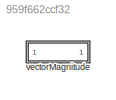
MODEL slx_959f662ccf32
KIND library
CONFIG AbsTol = auto
CONFIG EnableMultiTasking = off
CONFIG FixedStep = auto
CONFIG MaxStep = auto
CONFIG MinStep = auto
CONFIG RelTol = 1e-3
CONFIG SampleTimeConstraint = Unconstrained
CONFIG SolverName = VariableStepAuto
CONFIG StartTime = 0.0
CONFIG StopTime = 10.0
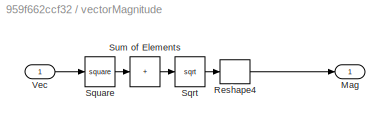
BLOCK [SubSystem] vectorMagnitude
  Ports = [1, 1]
  RequestExecContextInheritance = off
BLOCK [Outport] vectorMagnitude/Mag
BLOCK [Reshape] vectorMagnitude/Reshape4
  Ports = [1, 1]
BLOCK [Sqrt] vectorMagnitude/Sqrt
BLOCK [Math] vectorMagnitude/Square
  Operator = square
  Ports = [1, 1]
BLOCK [Sum] vectorMagnitude/Sum of Elements
  IconShape = rectangular
  Inputs = +
  Ports = [1, 1]
BLOCK [Inport] vectorMagnitude/Vec
LINE vectorMagnitude/Reshape4:1 -> vectorMagnitude/Mag:1
LINE vectorMagnitude/Sqrt:1 -> vectorMagnitude/Reshape4:1
LINE vectorMagnitude/Square:1 -> vectorMagnitude/Sum of Elements:1
LINE vectorMagnitude/Sum of Elements:1 -> vectorMagnitude/Sqrt:1
LINE vectorMagnitude/Vec:1 -> vectorMagnitude/Square:1
